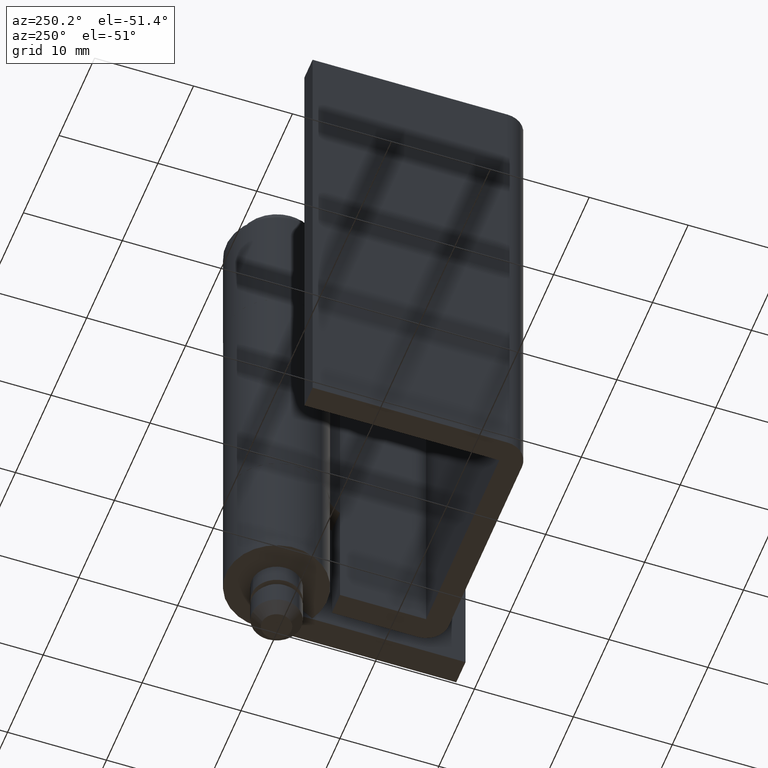
[diagram: clean part render]
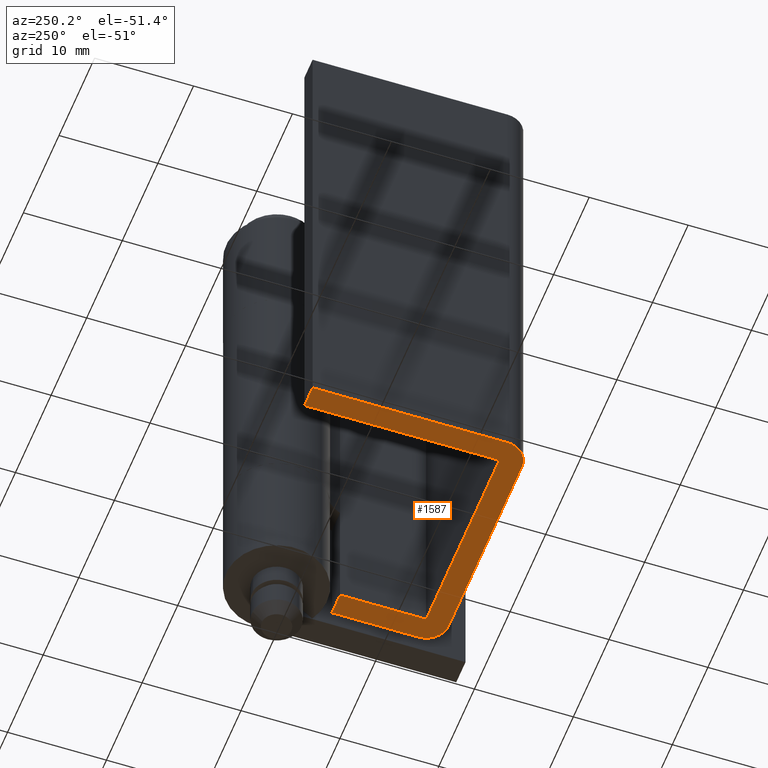
[diagram: same view with one face highlighted and labeled with its STEP entity id]
A machine part, auxiliary view. The second image highlights one B-rep face of the part: STEP entity #1587.
In plain terms, the highlighted face is a freeform B-spline surface patch.
Its self-contained STEP definition (entity closure, byte-faithful):
#1123=CARTESIAN_POINT('',(-1.150010164014660,-6.0,6.0));
#1124=VERTEX_POINT('',#1123);
#1139=CARTESIAN_POINT('',(1.149994000000000,-6.0,6.0));
#1140=VERTEX_POINT('',#1139);
#1146=CARTESIAN_POINT('',(-1.150010164014660,-6.0,6.0));
#1147=CARTESIAN_POINT('',(1.149994000000000,-6.0,6.0));
#1148=QUASI_UNIFORM_CURVE('',1,(#1146,#1147),.UNSPECIFIED.,.F.,.U.);
#1149=EDGE_CURVE('',#1124,#1140,#1148,.T.);
#1265=CARTESIAN_POINT('',(-24.000004000000100,-14.700000799287141,6.0));
#1266=VERTEX_POINT('',#1265);
#1267=CARTESIAN_POINT('',(-24.000008000000001,5.0,6.0));
#1268=VERTEX_POINT('',#1267);
#1269=CARTESIAN_POINT('',(-24.000004000000100,-14.700000799287141,6.0));
#1270=CARTESIAN_POINT('',(-24.000008000000001,5.0,6.0));
#1271=QUASI_UNIFORM_CURVE('',1,(#1269,#1270),.UNSPECIFIED.,.F.,.U.);
#1272=EDGE_CURVE('',#1266,#1268,#1271,.T.);
#1310=CARTESIAN_POINT('',(-21.700004000000099,-17.0,6.0));
#1311=VERTEX_POINT('',#1310);
#1312=CARTESIAN_POINT('',(-21.700004000000099,-17.0,6.0));
#1313=CARTESIAN_POINT('',(-22.652695252245657,-17.000000207106776,6.0));
#1314=CARTESIAN_POINT('',(-23.326349667691879,-16.326346025766352,6.0));
#1315=CARTESIAN_POINT('',(-24.000004083138091,-15.652691844425911,6.0));
#1316=CARTESIAN_POINT('',(-24.000004000000100,-14.700000799287141,6.0));
#1324=(BOUNDED_CURVE()B_SPLINE_CURVE(2,(#1312,#1313,#1314,#1315,#1316),.UNSPECIFIED.,.F.,.U.)B_SPLINE_CURVE_WITH_KNOTS((3,2,3),(0.0,0.500000000000000,1.0),.UNSPECIFIED.)CURVE()GEOMETRIC_REPRESENTATION_ITEM()RATIONAL_B_SPLINE_CURVE((1.0,0.923879524162429,1.0,0.923879524162429,1.0))REPRESENTATION_ITEM(''));
#1325=EDGE_CURVE('',#1311,#1266,#1324,.T.);
#1358=CARTESIAN_POINT('',(-1.150009000000000,-17.000001000000001,6.0));
#1359=VERTEX_POINT('',#1358);
#1360=CARTESIAN_POINT('',(-1.150009000000000,-17.000001000000001,6.0));
#1361=CARTESIAN_POINT('',(-21.700004000000099,-17.0,6.0));
#1362=QUASI_UNIFORM_CURVE('',1,(#1360,#1361),.UNSPECIFIED.,.F.,.U.);
#1363=EDGE_CURVE('',#1359,#1311,#1362,.T.);
#1395=CARTESIAN_POINT('',(1.149994000000000,-14.700001000000000,6.0));
#1396=VERTEX_POINT('',#1395);
#1397=CARTESIAN_POINT('',(1.149994000000000,-14.700001000000000,6.0));
#1398=CARTESIAN_POINT('',(1.149992500000000,-17.000001000000001,6.0));
#1399=CARTESIAN_POINT('',(-1.150009000000000,-17.000001000000001,6.0));
#1407=(BOUNDED_CURVE()B_SPLINE_CURVE(2,(#1397,#1398,#1399),.UNSPECIFIED.,.F.,.U.)CURVE()GEOMETRIC_REPRESENTATION_ITEM()QUASI_UNIFORM_CURVE()RATIONAL_B_SPLINE_CURVE((1.0,0.707106781186547,1.0))REPRESENTATION_ITEM(''));
#1408=EDGE_CURVE('',#1396,#1359,#1407,.T.);
#1439=CARTESIAN_POINT('',(1.149994000000000,-6.0,6.0));
#1440=CARTESIAN_POINT('',(1.149994000000000,-14.700001000000000,6.0));
#1441=QUASI_UNIFORM_CURVE('',1,(#1439,#1440),.UNSPECIFIED.,.F.,.U.);
#1442=EDGE_CURVE('',#1140,#1396,#1441,.T.);
#1465=CARTESIAN_POINT('',(-1.150009000000000,-14.700001000000000,6.0));
#1466=VERTEX_POINT('',#1465);
#1467=CARTESIAN_POINT('',(-1.150009000000000,-14.700001000000000,6.0));
#1468=CARTESIAN_POINT('',(-1.150010164014660,-6.0,6.0));
#1469=QUASI_UNIFORM_CURVE('',1,(#1467,#1468),.UNSPECIFIED.,.F.,.U.);
#1470=EDGE_CURVE('',#1466,#1124,#1469,.T.);
#1499=CARTESIAN_POINT('',(-21.700004000000099,-14.700001000000000,6.0));
#1500=VERTEX_POINT('',#1499);
#1501=CARTESIAN_POINT('',(-21.700004000000099,-14.700001000000000,6.0));
#1502=CARTESIAN_POINT('',(-1.150009000000000,-14.700001000000000,6.0));
#1503=QUASI_UNIFORM_CURVE('',1,(#1501,#1502),.UNSPECIFIED.,.F.,.U.);
#1504=EDGE_CURVE('',#1500,#1466,#1503,.T.);
#1527=CARTESIAN_POINT('',(-21.700004000000099,5.0,6.0));
#1528=VERTEX_POINT('',#1527);
#1529=CARTESIAN_POINT('',(-21.700004000000099,5.0,6.0));
#1530=CARTESIAN_POINT('',(-21.700004000000099,-14.700001000000000,6.0));
#1531=QUASI_UNIFORM_CURVE('',1,(#1529,#1530),.UNSPECIFIED.,.F.,.U.);
#1532=EDGE_CURVE('',#1528,#1500,#1531,.T.);
#1555=CARTESIAN_POINT('',(-24.000008000000001,5.0,6.0));
#1556=CARTESIAN_POINT('',(-21.700004000000099,5.0,6.0));
#1557=QUASI_UNIFORM_CURVE('',1,(#1555,#1556),.UNSPECIFIED.,.F.,.U.);
#1558=EDGE_CURVE('',#1268,#1528,#1557,.T.);
#1570=CARTESIAN_POINT('',(-25.256250315064189,-18.098902039911071,6.0));
#1571=CARTESIAN_POINT('',(2.406237214498352,-18.098902039911071,6.0));
#1572=CARTESIAN_POINT('',(-25.256250315064189,6.098900646520399,6.0));
#1573=CARTESIAN_POINT('',(2.406237214498352,6.098900646520399,6.0));
#1574=B_SPLINE_SURFACE_WITH_KNOTS('',1,1,((#1570,#1572),(#1571,#1573)),.UNSPECIFIED.,.F.,.F.,.U.,(2,2),(2,2),(0.0,27.662487529562540),(0.0,24.197802686431469),.UNSPECIFIED.);
#1575=ORIENTED_EDGE('',*,*,#1470,.T.);
#1576=ORIENTED_EDGE('',*,*,#1149,.T.);
#1577=ORIENTED_EDGE('',*,*,#1442,.T.);
#1578=ORIENTED_EDGE('',*,*,#1408,.T.);
#1579=ORIENTED_EDGE('',*,*,#1363,.T.);
#1580=ORIENTED_EDGE('',*,*,#1325,.T.);
#1581=ORIENTED_EDGE('',*,*,#1272,.T.);
#1582=ORIENTED_EDGE('',*,*,#1558,.T.);
#1583=ORIENTED_EDGE('',*,*,#1532,.T.);
#1584=ORIENTED_EDGE('',*,*,#1504,.T.);
#1585=EDGE_LOOP('',(#1575,#1576,#1577,#1578,#1579,#1580,#1581,#1582,#1583,#1584));
#1586=FACE_OUTER_BOUND('',#1585,.T.);
#1587=ADVANCED_FACE('',(#1586),#1574,.F.);